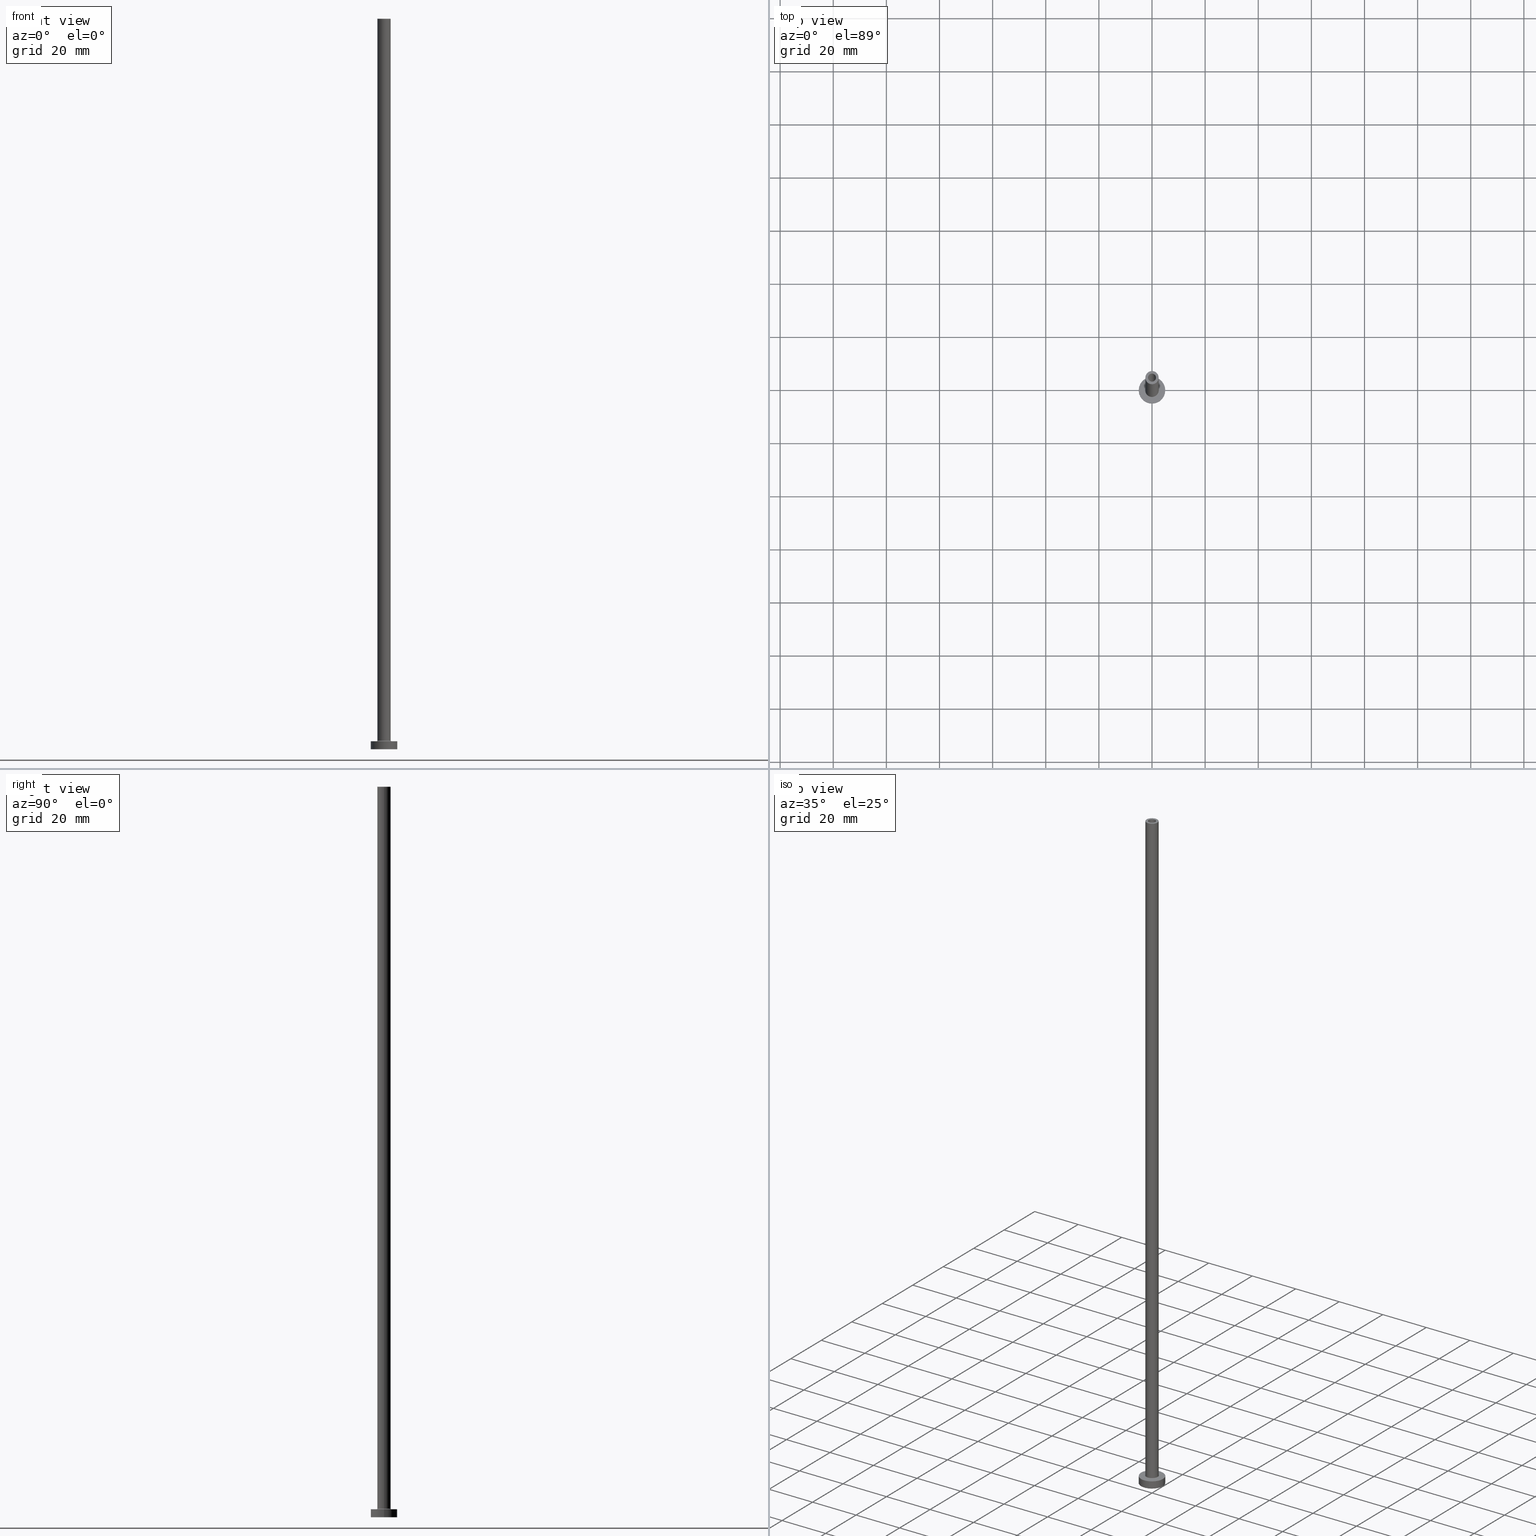
[diagram: canonical four-view strip — front | top / right | iso, engineering-drawing reading convention]
A machine part, canonical four-view strip (front | top / right | iso — engineering-drawing reading convention). The complete STEP part file that produces these views, byte-faithful:
ISO-10303-21;
HEADER;
FILE_DESCRIPTION (( 'STEP AP203' ),
    '1' );
FILE_NAME ('8223.STEP',
    '2023-02-13T17:59:55',
    ( '' ),
    ( '' ),
    'SwSTEP 2.0',
    'SolidWorks 2019',
    '' );
FILE_SCHEMA (( 'CONFIG_CONTROL_DESIGN' ));
ENDSEC;

DATA;
#1 = ADVANCED_FACE ( 'NONE', ( #183 ), #31, .F. ) ;
#2 = CARTESIAN_POINT ( 'NONE',  ( 0.000000000000000000, 0.000000000000000000, 0.000000000000000000 ) ) ;
#3 = DIRECTION ( 'NONE',  ( -1.000000000000000000, 0.000000000000000000, 0.000000000000000000 ) ) ;
#4 = EDGE_CURVE ( 'NONE', #66, #181, #457, .T. ) ;
#5 = CIRCLE ( 'NONE', #277, 5.000000000000000000 ) ;
#6 = CARTESIAN_POINT ( 'NONE',  ( 0.000000000000000000, 0.000000000000000000, 275.0000000000000000 ) ) ;
#7 = COORDINATED_UNIVERSAL_TIME_OFFSET ( 1, 0, .AHEAD. ) ;
#8 = CARTESIAN_POINT ( 'NONE',  ( 0.000000000000000000, 0.000000000000000000, 275.0000000000000000 ) ) ;
#9 = APPROVAL_STATUS ( 'not_yet_approved' ) ;
#10 = CYLINDRICAL_SURFACE ( 'NONE', #33, 1.650000000000000133 ) ;
#11 = APPROVAL_STATUS ( 'not_yet_approved' ) ;
#12 = CARTESIAN_POINT ( 'NONE',  ( 0.000000000000000000, 0.000000000000000000, 0.000000000000000000 ) ) ;
#13 = CIRCLE ( 'NONE', #145, 1.650000000000000133 ) ;
#14 = APPROVAL_PERSON_ORGANIZATION ( #401, #365, #361 ) ;
#15 = ORIENTED_EDGE ( 'NONE', *, *, #426, .F. ) ;
#16 = PERSON_AND_ORGANIZATION ( #72, #359 ) ;
#17 = FACE_OUTER_BOUND ( 'NONE', #106, .T. ) ;
#18 = CARTESIAN_POINT ( 'NONE',  ( 0.000000000000000000, 0.000000000000000000, 3.000000000000000000 ) ) ;
#19 = EDGE_LOOP ( 'NONE', ( #409, #147 ) ) ;
#20 = CARTESIAN_POINT ( 'NONE',  ( 0.000000000000000000, 0.000000000000000000, 230.0000000000000284 ) ) ;
#21 = CC_DESIGN_PERSON_AND_ORGANIZATION_ASSIGNMENT ( #88, #130, ( #210 ) ) ;
#22 = DIRECTION ( 'NONE',  ( -0.000000000000000000, -0.000000000000000000, -1.000000000000000000 ) ) ;
#23 = ORIENTED_EDGE ( 'NONE', *, *, #225, .F. ) ;
#24 = MECHANICAL_CONTEXT ( 'NONE', #367, 'mechanical' ) ;
#25 = ORIENTED_EDGE ( 'NONE', *, *, #202, .T. ) ;
#26 = AXIS2_PLACEMENT_3D ( 'NONE', #354, #122, #120 ) ;
#27 = LINE ( 'NONE', #82, #53 ) ;
#28 = ORIENTED_EDGE ( 'NONE', *, *, #213, .F. ) ;
#29 = DIRECTION ( 'NONE',  ( 1.000000000000000000, 0.000000000000000000, 0.000000000000000000 ) ) ;
#30 = ORIENTED_EDGE ( 'NONE', *, *, #36, .T. ) ;
#31 = TOROIDAL_SURFACE ( 'NONE', #177, 2.799999999999999822, 0.2999999999999999889 ) ;
#32 = VERTEX_POINT ( 'NONE', #455 ) ;
#33 = AXIS2_PLACEMENT_3D ( 'NONE', #232, #298, #42 ) ;
#34 = CARTESIAN_POINT ( 'NONE',  ( 1.500000000000000222, 1.836970198721029934E-16, 230.0000000000000284 ) ) ;
#35 = AXIS2_PLACEMENT_3D ( 'NONE', #243, #175, #239 ) ;
#36 = EDGE_CURVE ( 'NONE', #378, #224, #387, .T. ) ;
#37 = DIRECTION ( 'NONE',  ( 0.000000000000000000, 0.000000000000000000, 1.000000000000000000 ) ) ;
#38 = CARTESIAN_POINT ( 'NONE',  ( 2.799999999999999822, 0.000000000000000000, 3.000000000000012434 ) ) ;
#39 = FACE_OUTER_BOUND ( 'NONE', #315, .T. ) ;
#40 = CC_DESIGN_PERSON_AND_ORGANIZATION_ASSIGNMENT ( #16, #125, ( #382 ) ) ;
#41 = DIRECTION ( 'NONE',  ( 0.000000000000000000, 0.000000000000000000, 1.000000000000000000 ) ) ;
#42 = DIRECTION ( 'NONE',  ( -1.000000000000000000, 0.000000000000000000, 0.000000000000000000 ) ) ;
#43 = AXIS2_PLACEMENT_3D ( 'NONE', #160, #436, #332 ) ;
#44 = PERSON_AND_ORGANIZATION_ROLE ( 'creator' ) ;
#45 = AXIS2_PLACEMENT_3D ( 'NONE', #2, #229, #300 ) ;
#46 = FACE_OUTER_BOUND ( 'NONE', #19, .T. ) ;
#47 = APPROVAL ( #9, 'NEUR�EN�' ) ;
#48 = SHAPE_DEFINITION_REPRESENTATION ( #107, #427 ) ;
#49 = FACE_OUTER_BOUND ( 'NONE', #256, .T. ) ;
#50 = EDGE_CURVE ( 'NONE', #407, #322, #419, .T. ) ;
#51 = COORDINATED_UNIVERSAL_TIME_OFFSET ( 1, 0, .AHEAD. ) ;
#52 = DIRECTION ( 'NONE',  ( 0.000000000000000000, 0.000000000000000000, -1.000000000000000000 ) ) ;
#53 = VECTOR ( 'NONE', #289, 1000.000000000000000 ) ;
#54 = EDGE_CURVE ( 'NONE', #66, #324, #394, .T. ) ;
#55 = ORIENTED_EDGE ( 'NONE', *, *, #69, .F. ) ;
#56 = APPLICATION_CONTEXT ( 'configuration controlled 3d designs of mechanical parts and assemblies' ) ;
#57 = CIRCLE ( 'NONE', #320, 2.500000000000000000 ) ;
#58 = PERSON_AND_ORGANIZATION ( #72, #359 ) ;
#59 = ORIENTED_EDGE ( 'NONE', *, *, #432, .T. ) ;
#60 = CARTESIAN_POINT ( 'NONE',  ( 2.500000000000000000, 3.061616997868383141E-16, 275.0000000000000000 ) ) ;
#61 = ORIENTED_EDGE ( 'NONE', *, *, #225, .T. ) ;
#62 = EDGE_CURVE ( 'NONE', #248, #216, #362, .T. ) ;
#63 = DIRECTION ( 'NONE',  ( 1.000000000000000000, 0.000000000000000000, 0.000000000000000000 ) ) ;
#64 = EDGE_LOOP ( 'NONE', ( #208, #451, #381, #23 ) ) ;
#65 = CARTESIAN_POINT ( 'NONE',  ( 0.000000000000000000, 0.000000000000000000, 3.000000000000000000 ) ) ;
#66 = VERTEX_POINT ( 'NONE', #424 ) ;
#67 = DIRECTION ( 'NONE',  ( 1.000000000000000000, 0.000000000000000000, 0.000000000000000000 ) ) ;
#68 = DIRECTION ( 'NONE',  ( 1.000000000000000000, 0.000000000000000000, 0.000000000000000000 ) ) ;
#69 = EDGE_CURVE ( 'NONE', #446, #322, #425, .T. ) ;
#70 = CIRCLE ( 'NONE', #193, 2.500000000000000000 ) ;
#71 = ORIENTED_EDGE ( 'NONE', *, *, #386, .F. ) ;
#72 = PERSON ( 'NEUR�EN�', 'NEUR�EN�', 'NEUR�EN�', ('NEUR�EN�'), ('NEUR�EN�'), ('NEUR�EN�') ) ;
#73 = ORIENTED_EDGE ( 'NONE', *, *, #432, .F. ) ;
#74 = CARTESIAN_POINT ( 'NONE',  ( -5.000000000000000000, 0.000000000000000000, 0.000000000000000000 ) ) ;
#75 = ADVANCED_FACE ( 'NONE', ( #39 ), #238, .F. ) ;
#76 = AXIS2_PLACEMENT_3D ( 'NONE', #294, #254, #68 ) ;
#77 = DIRECTION ( 'NONE',  ( 1.000000000000000000, 0.000000000000000000, 0.000000000000000000 ) ) ;
#78 = CARTESIAN_POINT ( 'NONE',  ( -1.650000000000000133, 0.000000000000000000, 234.6669047558312400 ) ) ;
#79 = VECTOR ( 'NONE', #187, 1000.000000000000000 ) ;
#80 = CARTESIAN_POINT ( 'NONE',  ( 0.000000000000000000, 0.000000000000000000, 0.000000000000000000 ) ) ;
#81 = EDGE_CURVE ( 'NONE', #224, #32, #299, .T. ) ;
#82 = CARTESIAN_POINT ( 'NONE',  ( 1.650000000000000133, 2.020667218593133001E-16, 234.6669047558312400 ) ) ;
#83 = DIRECTION ( 'NONE',  ( -1.000000000000000000, 0.000000000000000000, 0.000000000000000000 ) ) ;
#84 = CARTESIAN_POINT ( 'NONE',  ( 0.000000000000000000, 0.000000000000000000, 3.000000000000000000 ) ) ;
#85 = VECTOR ( 'NONE', #385, 1000.000000000000000 ) ;
#86 = DATE_AND_TIME ( #166, #126 ) ;
#87 = CARTESIAN_POINT ( 'NONE',  ( 1.650000000000000133, 2.020667218593133001E-16, 230.0000000000000284 ) ) ;
#88 = PERSON_AND_ORGANIZATION ( #72, #359 ) ;
#89 = ADVANCED_FACE ( 'NONE', ( #260, #46 ), #228, .T. ) ;
#90 = CYLINDRICAL_SURFACE ( 'NONE', #233, 1.650000000000000133 ) ;
#91 = DESIGN_CONTEXT ( 'detailed design', #56, 'design' ) ;
#92 = EDGE_CURVE ( 'NONE', #181, #66, #275, .T. ) ;
#93 = DIRECTION ( 'NONE',  ( 0.000000000000000000, 0.000000000000000000, 1.000000000000000000 ) ) ;
#94 = AXIS2_PLACEMENT_3D ( 'NONE', #8, #392, #304 ) ;
#95 = DIRECTION ( 'NONE',  ( 1.000000000000000000, 0.000000000000000000, 0.000000000000000000 ) ) ;
#96 = EDGE_CURVE ( 'NONE', #112, #407, #310, .T. ) ;
#97 = CARTESIAN_POINT ( 'NONE',  ( -1.650000000000000133, 0.000000000000000000, 230.0000000000000284 ) ) ;
#98 = ORIENTED_EDGE ( 'NONE', *, *, #69, .T. ) ;
#99 = CARTESIAN_POINT ( 'NONE',  ( -1.500000000000000222, 0.000000000000000000, 230.0000000000000284 ) ) ;
#100 = ORIENTED_EDGE ( 'NONE', *, *, #4, .T. ) ;
#101 = FACE_OUTER_BOUND ( 'NONE', #253, .T. ) ;
#102 = ORIENTED_EDGE ( 'NONE', *, *, #128, .F. ) ;
#103 = ADVANCED_FACE ( 'NONE', ( #429 ), #10, .F. ) ;
#104 = CARTESIAN_POINT ( 'NONE',  ( 5.000000000000000000, 6.123233995736766282E-16, 0.000000000000000000 ) ) ;
#105 = ORIENTED_EDGE ( 'NONE', *, *, #441, .F. ) ;
#106 = EDGE_LOOP ( 'NONE', ( #15, #138 ) ) ;
#107 = PRODUCT_DEFINITION_SHAPE ( 'NONE', 'NONE',  #410 ) ;
#108 = CARTESIAN_POINT ( 'NONE',  ( 5.000000000000000000, 6.123233995736766282E-16, 3.000000000000000000 ) ) ;
#109 = ORIENTED_EDGE ( 'NONE', *, *, #202, .F. ) ;
#110 = ADVANCED_FACE ( 'NONE', ( #326 ), #355, .T. ) ;
#111 = DIRECTION ( 'NONE',  ( -0.000000000000000000, -0.000000000000000000, -1.000000000000000000 ) ) ;
#112 = VERTEX_POINT ( 'NONE', #389 ) ;
#113 = DIRECTION ( 'NONE',  ( -1.000000000000000000, 0.000000000000000000, 0.000000000000000000 ) ) ;
#114 = ADVANCED_FACE ( 'NONE', ( #263 ), #230, .F. ) ;
#115 = CARTESIAN_POINT ( 'NONE',  ( 0.000000000000000000, 0.000000000000000000, 230.0000000000000284 ) ) ;
#116 = AXIS2_PLACEMENT_3D ( 'NONE', #445, #308, #447 ) ;
#117 = APPLICATION_PROTOCOL_DEFINITION ( 'international standard', 'config_control_design', 1994, #367 ) ;
#118 = ADVANCED_FACE ( 'NONE', ( #303, #195 ), #265, .T. ) ;
#119 = CIRCLE ( 'NONE', #184, 0.2999999999999999334 ) ;
#120 = DIRECTION ( 'NONE',  ( 1.000000000000000000, 0.000000000000000000, 0.000000000000000000 ) ) ;
#121 = PERSON_AND_ORGANIZATION ( #72, #359 ) ;
#122 = DIRECTION ( 'NONE',  ( 0.000000000000000000, 0.000000000000000000, 1.000000000000000000 ) ) ;
#123 = DATE_AND_TIME ( #271, #261 ) ;
#124 = LINE ( 'NONE', #267, #79 ) ;
#125 = PERSON_AND_ORGANIZATION_ROLE ( 'design_owner' ) ;
#126 = LOCAL_TIME ( 18, 59, 55.00000000000000000, #7 ) ;
#127 = CARTESIAN_POINT ( 'NONE',  ( 0.000000000000000000, 0.000000000000000000, 3.000000000000000000 ) ) ;
#128 = EDGE_CURVE ( 'NONE', #112, #446, #124, .T. ) ;
#129 = FACE_BOUND ( 'NONE', #319, .T. ) ;
#130 = PERSON_AND_ORGANIZATION_ROLE ( 'classification_officer' ) ;
#131 = DIRECTION ( 'NONE',  ( -0.000000000000000000, -0.000000000000000000, -1.000000000000000000 ) ) ;
#132 = ORIENTED_EDGE ( 'NONE', *, *, #4, .F. ) ;
#133 = EDGE_CURVE ( 'NONE', #136, #165, #13, .T. ) ;
#134 = FACE_BOUND ( 'NONE', #440, .T. ) ;
#135 = AXIS2_PLACEMENT_3D ( 'NONE', #379, #423, #327 ) ;
#136 = VERTEX_POINT ( 'NONE', #87 ) ;
#137 = CARTESIAN_POINT ( 'NONE',  ( 0.000000000000000000, 0.000000000000000000, 275.0000000000000000 ) ) ;
#138 = ORIENTED_EDGE ( 'NONE', *, *, #133, .F. ) ;
#139 = ORIENTED_EDGE ( 'NONE', *, *, #426, .T. ) ;
#140 = EDGE_CURVE ( 'NONE', #248, #378, #57, .T. ) ;
#141 =( LENGTH_UNIT ( ) NAMED_UNIT ( * ) SI_UNIT ( .MILLI., .METRE. ) );
#142 = MANIFOLD_SOLID_BREP ( 'Odebrat vysunut�m4', #251 ) ;
#143 = ORIENTED_EDGE ( 'NONE', *, *, #81, .T. ) ;
#144 = CIRCLE ( 'NONE', #135, 1.500000000000000222 ) ;
#145 = AXIS2_PLACEMENT_3D ( 'NONE', #115, #37, #77 ) ;
#146 = CARTESIAN_POINT ( 'NONE',  ( 0.000000000000000000, 0.000000000000000000, 230.0000000000000284 ) ) ;
#147 = ORIENTED_EDGE ( 'NONE', *, *, #140, .T. ) ;
#148 = ORIENTED_EDGE ( 'NONE', *, *, #386, .T. ) ;
#149 = EDGE_CURVE ( 'NONE', #216, #343, #119, .T. ) ;
#150 = VERTEX_POINT ( 'NONE', #99 ) ;
#151 = APPROVAL_PERSON_ORGANIZATION ( #161, #47, #397 ) ;
#152 = ORIENTED_EDGE ( 'NONE', *, *, #249, .T. ) ;
#153 = CARTESIAN_POINT ( 'NONE',  ( -1.500000000000000222, 0.000000000000000000, 275.0000000000000000 ) ) ;
#154 = DIRECTION ( 'NONE',  ( 0.000000000000000000, -1.000000000000000000, 0.000000000000000000 ) ) ;
#155 = CARTESIAN_POINT ( 'NONE',  ( 1.500000000000000222, 1.836970198721029934E-16, 275.0000000000000000 ) ) ;
#156 = CIRCLE ( 'NONE', #307, 1.650000000000000133 ) ;
#157 = COORDINATED_UNIVERSAL_TIME_OFFSET ( 1, 0, .AHEAD. ) ;
#158 = DIRECTION ( 'NONE',  ( 0.000000000000000000, 0.000000000000000000, -1.000000000000000000 ) ) ;
#159 = APPROVAL_DATE_TIME ( #302, #365 ) ;
#160 = CARTESIAN_POINT ( 'NONE',  ( 0.000000000000000000, 0.000000000000000000, 275.0000000000000000 ) ) ;
#161 = PERSON_AND_ORGANIZATION ( #72, #359 ) ;
#162 = CARTESIAN_POINT ( 'NONE',  ( -2.799999999999999822, 3.429011037612588783E-16, 3.300000000000025135 ) ) ;
#163 = CIRCLE ( 'NONE', #219, 1.500000000000000222 ) ;
#164 = DIRECTION ( 'NONE',  ( -0.000000000000000000, -0.000000000000000000, -1.000000000000000000 ) ) ;
#165 = VERTEX_POINT ( 'NONE', #97 ) ;
#166 = CALENDAR_DATE ( 2023, 13, 2 ) ;
#167 = DIRECTION ( 'NONE',  ( 1.000000000000000000, 0.000000000000000000, -0.000000000000000000 ) ) ;
#168 = ORIENTED_EDGE ( 'NONE', *, *, #221, .T. ) ;
#169 = CARTESIAN_POINT ( 'NONE',  ( -1.650000000000000133, 0.000000000000000000, 0.000000000000000000 ) ) ;
#170 = ORIENTED_EDGE ( 'NONE', *, *, #281, .T. ) ;
#171 = CC_DESIGN_PERSON_AND_ORGANIZATION_ASSIGNMENT ( #370, #194, ( #452 ) ) ;
#172 = DIRECTION ( 'NONE',  ( 0.000000000000000000, 0.000000000000000000, 1.000000000000000000 ) ) ;
#173 = APPROVAL_PERSON_ORGANIZATION ( #357, #206, #231 ) ;
#174 = ORIENTED_EDGE ( 'NONE', *, *, #380, .T. ) ;
#175 = DIRECTION ( 'NONE',  ( 0.000000000000000000, 0.000000000000000000, -1.000000000000000000 ) ) ;
#176 = ORIENTED_EDGE ( 'NONE', *, *, #360, .T. ) ;
#177 = AXIS2_PLACEMENT_3D ( 'NONE', #220, #348, #29 ) ;
#178 = DIRECTION ( 'NONE',  ( -0.000000000000000000, -0.000000000000000000, -1.000000000000000000 ) ) ;
#179 = VERTEX_POINT ( 'NONE', #169 ) ;
#180 = CARTESIAN_POINT ( 'NONE',  ( -2.500000000000000000, 0.000000000000000000, 275.0000000000000000 ) ) ;
#181 = VERTEX_POINT ( 'NONE', #408 ) ;
#182 = VECTOR ( 'NONE', #321, 1000.000000000000000 ) ;
#183 = FACE_OUTER_BOUND ( 'NONE', #64, .T. ) ;
#184 = AXIS2_PLACEMENT_3D ( 'NONE', #461, #154, #52 ) ;
#185 = AXIS2_PLACEMENT_3D ( 'NONE', #363, #22, #366 ) ;
#186 = ADVANCED_FACE ( 'NONE', ( #49 ), #402, .F. ) ;
#187 = DIRECTION ( 'NONE',  ( -0.000000000000000000, -0.000000000000000000, -1.000000000000000000 ) ) ;
#188 = EDGE_CURVE ( 'NONE', #179, #417, #285, .T. ) ;
#189 =( NAMED_UNIT ( * ) SI_UNIT ( $, .STERADIAN. ) SOLID_ANGLE_UNIT ( ) );
#190 = DIRECTION ( 'NONE',  ( 1.000000000000000000, 0.000000000000000000, 0.000000000000000000 ) ) ;
#191 = CARTESIAN_POINT ( 'NONE',  ( -2.500000000000000000, 0.000000000000000000, 275.0000000000000000 ) ) ;
#192 = DIRECTION ( 'NONE',  ( 1.000000000000000000, 0.000000000000000000, 0.000000000000000000 ) ) ;
#193 = AXIS2_PLACEMENT_3D ( 'NONE', #137, #41, #67 ) ;
#194 = PERSON_AND_ORGANIZATION_ROLE ( 'design_supplier' ) ;
#195 = FACE_OUTER_BOUND ( 'NONE', #250, .T. ) ;
#196 = DIRECTION ( 'NONE',  ( 1.224646799147353207E-16, 1.000000000000000000, -0.000000000000000000 ) ) ;
#197 = CARTESIAN_POINT ( 'NONE',  ( 2.500000000000000000, 3.061616997868383141E-16, 3.300000000000025135 ) ) ;
#198 = APPROVAL_STATUS ( 'not_yet_approved' ) ;
#199 = CC_DESIGN_APPROVAL ( #365, ( #210 ) ) ;
#200 = AXIS2_PLACEMENT_3D ( 'NONE', #212, #215, #286 ) ;
#201 = CARTESIAN_POINT ( 'NONE',  ( -2.500000000000000000, 0.000000000000000000, 3.300000000000025135 ) ) ;
#202 = EDGE_CURVE ( 'NONE', #343, #32, #459, .T. ) ;
#203 = ORIENTED_EDGE ( 'NONE', *, *, #281, .F. ) ;
#204 = SECURITY_CLASSIFICATION_LEVEL ( 'unclassified' ) ;
#205 = CARTESIAN_POINT ( 'NONE',  ( 0.000000000000000000, 0.000000000000000000, 234.6669047558312400 ) ) ;
#206 = APPROVAL ( #198, 'NEUR�EN�' ) ;
#207 = CARTESIAN_POINT ( 'NONE',  ( 0.000000000000000000, 0.000000000000000000, 0.000000000000000000 ) ) ;
#208 = ORIENTED_EDGE ( 'NONE', *, *, #81, .F. ) ;
#209 = DIRECTION ( 'NONE',  ( 0.000000000000000000, 0.000000000000000000, 1.000000000000000000 ) ) ;
#210 = SECURITY_CLASSIFICATION ( '', '', #204 ) ;
#211 = ORIENTED_EDGE ( 'NONE', *, *, #188, .F. ) ;
#212 = CARTESIAN_POINT ( 'NONE',  ( 0.000000000000000000, 0.000000000000000000, 3.300000000000025135 ) ) ;
#213 = EDGE_CURVE ( 'NONE', #407, #112, #5, .T. ) ;
#214 = EDGE_LOOP ( 'NONE', ( #383, #448, #176, #309 ) ) ;
#215 = DIRECTION ( 'NONE',  ( 0.000000000000000000, 0.000000000000000000, 1.000000000000000000 ) ) ;
#216 = VERTEX_POINT ( 'NONE', #197 ) ;
#217 = VECTOR ( 'NONE', #398, 1000.000000000000000 ) ;
#218 = EDGE_CURVE ( 'NONE', #224, #216, #391, .T. ) ;
#219 = AXIS2_PLACEMENT_3D ( 'NONE', #20, #209, #438 ) ;
#220 = CARTESIAN_POINT ( 'NONE',  ( 0.000000000000000000, 0.000000000000000000, 3.300000000000025135 ) ) ;
#221 = EDGE_CURVE ( 'NONE', #417, #179, #156, .T. ) ;
#222 = ORIENTED_EDGE ( 'NONE', *, *, #50, .T. ) ;
#223 = CC_DESIGN_DATE_AND_TIME_ASSIGNMENT ( #273, #430, ( #410 ) ) ;
#224 = VERTEX_POINT ( 'NONE', #201 ) ;
#225 = EDGE_CURVE ( 'NONE', #32, #343, #240, .T. ) ;
#226 = CARTESIAN_POINT ( 'NONE',  ( 0.000000000000000000, 0.000000000000000000, 275.0000000000000000 ) ) ;
#227 = CC_DESIGN_SECURITY_CLASSIFICATION ( #210, ( #452 ) ) ;
#228 = PLANE ( 'NONE',  #94 ) ;
#229 = DIRECTION ( 'NONE',  ( 0.000000000000000000, 0.000000000000000000, 1.000000000000000000 ) ) ;
#230 = CYLINDRICAL_SURFACE ( 'NONE', #335, 1.500000000000000222 ) ;
#231 = APPROVAL_ROLE ( '' ) ;
#232 = CARTESIAN_POINT ( 'NONE',  ( 0.000000000000000000, 0.000000000000000000, 234.6669047558312400 ) ) ;
#233 = AXIS2_PLACEMENT_3D ( 'NONE', #205, #337, #442 ) ;
#234 = CALENDAR_DATE ( 2023, 13, 2 ) ;
#235 = CARTESIAN_POINT ( 'NONE',  ( 0.000000000000000000, 0.000000000000000000, 275.0000000000000000 ) ) ;
#236 = DIRECTION ( 'NONE',  ( 1.000000000000000000, 0.000000000000000000, 0.000000000000000000 ) ) ;
#237 = CALENDAR_DATE ( 2023, 13, 2 ) ;
#238 = TOROIDAL_SURFACE ( 'NONE', #26, 2.799999999999999822, 0.2999999999999999889 ) ;
#239 = DIRECTION ( 'NONE',  ( -1.000000000000000000, 0.000000000000000000, 0.000000000000000000 ) ) ;
#240 = CIRCLE ( 'NONE', #268, 2.799999999999999822 ) ;
#241 = DIRECTION ( 'NONE',  ( -0.000000000000000000, -0.000000000000000000, -1.000000000000000000 ) ) ;
#242 = ORIENTED_EDGE ( 'NONE', *, *, #54, .T. ) ;
#243 = CARTESIAN_POINT ( 'NONE',  ( 0.000000000000000000, 0.000000000000000000, 275.0000000000000000 ) ) ;
#244 = AXIS2_PLACEMENT_3D ( 'NONE', #162, #196, #428 ) ;
#245 = LINE ( 'NONE', #78, #453 ) ;
#246 = AXIS2_PLACEMENT_3D ( 'NONE', #146, #415, #258 ) ;
#247 = FACE_OUTER_BOUND ( 'NONE', #214, .T. ) ;
#248 = VERTEX_POINT ( 'NONE', #60 ) ;
#249 = EDGE_CURVE ( 'NONE', #324, #150, #163, .T. ) ;
#250 = EDGE_LOOP ( 'NONE', ( #312, #458 ) ) ;
#251 = CLOSED_SHELL ( 'NONE', ( #114, #103, #75, #418, #349, #274, #118, #295, #110, #89, #1, #292, #257, #186 ) ) ;
#252 =( GEOMETRIC_REPRESENTATION_CONTEXT ( 3 ) GLOBAL_UNCERTAINTY_ASSIGNED_CONTEXT ( ( #364 ) ) GLOBAL_UNIT_ASSIGNED_CONTEXT ( ( #141, #388, #189 ) ) REPRESENTATION_CONTEXT ( 'NONE', 'WORKASPACE' ) );
#253 = EDGE_LOOP ( 'NONE', ( #28, #222, #170, #102 ) ) ;
#254 = DIRECTION ( 'NONE',  ( 0.000000000000000000, 0.000000000000000000, 1.000000000000000000 ) ) ;
#255 = CARTESIAN_POINT ( 'NONE',  ( 5.000000000000000000, 6.123233995736766282E-16, 3.000000000000000000 ) ) ;
#256 = EDGE_LOOP ( 'NONE', ( #279, #100, #59, #454 ) ) ;
#257 = ADVANCED_FACE ( 'NONE', ( #129, #17 ), #272, .F. ) ;
#258 = DIRECTION ( 'NONE',  ( 1.000000000000000000, 0.000000000000000000, 0.000000000000000000 ) ) ;
#259 = VECTOR ( 'NONE', #306, 1000.000000000000000 ) ;
#260 = FACE_BOUND ( 'NONE', #346, .T. ) ;
#261 = LOCAL_TIME ( 18, 59, 55.00000000000000000, #264 ) ;
#262 = DIRECTION ( 'NONE',  ( 0.000000000000000000, 0.000000000000000000, -1.000000000000000000 ) ) ;
#263 = FACE_OUTER_BOUND ( 'NONE', #290, .T. ) ;
#264 = COORDINATED_UNIVERSAL_TIME_OFFSET ( 1, 0, .AHEAD. ) ;
#265 = PLANE ( 'NONE',  #413 ) ;
#266 = APPROVAL_DATE_TIME ( #123, #206 ) ;
#267 = CARTESIAN_POINT ( 'NONE',  ( -5.000000000000000000, 0.000000000000000000, 3.000000000000000000 ) ) ;
#268 = AXIS2_PLACEMENT_3D ( 'NONE', #18, #164, #336 ) ;
#269 = PERSON_AND_ORGANIZATION_ROLE ( 'creator' ) ;
#270 = DIRECTION ( 'NONE',  ( 0.000000000000000000, 0.000000000000000000, 1.000000000000000000 ) ) ;
#271 = CALENDAR_DATE ( 2023, 13, 2 ) ;
#272 = PLANE ( 'NONE',  #437 ) ;
#273 = DATE_AND_TIME ( #234, #420 ) ;
#274 = ADVANCED_FACE ( 'NONE', ( #280 ), #400, .T. ) ;
#275 = CIRCLE ( 'NONE', #43, 1.500000000000000222 ) ;
#276 = CARTESIAN_POINT ( 'NONE',  ( 0.000000000000000000, 0.000000000000000000, 0.000000000000000000 ) ) ;
#277 = AXIS2_PLACEMENT_3D ( 'NONE', #373, #270, #316 ) ;
#278 = FACE_OUTER_BOUND ( 'NONE', #412, .T. ) ;
#279 = ORIENTED_EDGE ( 'NONE', *, *, #54, .F. ) ;
#280 = FACE_OUTER_BOUND ( 'NONE', #344, .T. ) ;
#281 = EDGE_CURVE ( 'NONE', #322, #446, #341, .T. ) ;
#282 = EDGE_LOOP ( 'NONE', ( #25, #61 ) ) ;
#283 = CYLINDRICAL_SURFACE ( 'NONE', #329, 5.000000000000000000 ) ;
#284 = ORIENTED_EDGE ( 'NONE', *, *, #50, .F. ) ;
#285 = CIRCLE ( 'NONE', #313, 1.650000000000000133 ) ;
#286 = DIRECTION ( 'NONE',  ( 1.000000000000000000, 0.000000000000000000, 0.000000000000000000 ) ) ;
#287 = EDGE_LOOP ( 'NONE', ( #139, #174, #168, #105 ) ) ;
#288 = AXIS2_PLACEMENT_3D ( 'NONE', #235, #396, #83 ) ;
#289 = DIRECTION ( 'NONE',  ( 0.000000000000000000, 0.000000000000000000, -1.000000000000000000 ) ) ;
#290 = EDGE_LOOP ( 'NONE', ( #372, #242, #71, #73 ) ) ;
#291 = ORIENTED_EDGE ( 'NONE', *, *, #221, .F. ) ;
#292 = ADVANCED_FACE ( 'NONE', ( #371 ), #90, .F. ) ;
#293 = CIRCLE ( 'NONE', #200, 2.500000000000000000 ) ;
#294 = CARTESIAN_POINT ( 'NONE',  ( 0.000000000000000000, 0.000000000000000000, 275.0000000000000000 ) ) ;
#295 = ADVANCED_FACE ( 'NONE', ( #134, #278 ), #406, .F. ) ;
#296 = EDGE_LOOP ( 'NONE', ( #368, #340, #317, #351 ) ) ;
#297 = EDGE_CURVE ( 'NONE', #378, #248, #70, .T. ) ;
#298 = DIRECTION ( 'NONE',  ( 0.000000000000000000, 0.000000000000000000, -1.000000000000000000 ) ) ;
#299 = CIRCLE ( 'NONE', #244, 0.2999999999999999334 ) ;
#300 = DIRECTION ( 'NONE',  ( 1.000000000000000000, 0.000000000000000000, 0.000000000000000000 ) ) ;
#301 = DIRECTION ( 'NONE',  ( 0.000000000000000000, 0.000000000000000000, 1.000000000000000000 ) ) ;
#302 = DATE_AND_TIME ( #403, #377 ) ;
#303 = FACE_BOUND ( 'NONE', #282, .T. ) ;
#304 = DIRECTION ( 'NONE',  ( 1.000000000000000000, 0.000000000000000000, -0.000000000000000000 ) ) ;
#305 = DATE_AND_TIME ( #237, #405 ) ;
#306 = DIRECTION ( 'NONE',  ( -0.000000000000000000, -0.000000000000000000, -1.000000000000000000 ) ) ;
#307 = AXIS2_PLACEMENT_3D ( 'NONE', #376, #339, #63 ) ;
#308 = DIRECTION ( 'NONE',  ( 0.000000000000000000, 0.000000000000000000, 1.000000000000000000 ) ) ;
#309 = ORIENTED_EDGE ( 'NONE', *, *, #36, .F. ) ;
#310 = CIRCLE ( 'NONE', #356, 5.000000000000000000 ) ;
#311 = DIRECTION ( 'NONE',  ( -1.000000000000000000, 0.000000000000000000, 0.000000000000000000 ) ) ;
#312 = ORIENTED_EDGE ( 'NONE', *, *, #96, .T. ) ;
#313 = AXIS2_PLACEMENT_3D ( 'NONE', #12, #241, #236 ) ;
#314 = DIRECTION ( 'NONE',  ( 1.000000000000000000, 0.000000000000000000, -0.000000000000000000 ) ) ;
#315 = EDGE_LOOP ( 'NONE', ( #350, #143, #109, #421 ) ) ;
#316 = DIRECTION ( 'NONE',  ( 1.000000000000000000, 0.000000000000000000, 0.000000000000000000 ) ) ;
#317 = ORIENTED_EDGE ( 'NONE', *, *, #441, .T. ) ;
#318 = DIRECTION ( 'NONE',  ( 0.000000000000000000, 0.000000000000000000, -1.000000000000000000 ) ) ;
#319 = EDGE_LOOP ( 'NONE', ( #148, #152 ) ) ;
#320 = AXIS2_PLACEMENT_3D ( 'NONE', #226, #325, #353 ) ;
#321 = DIRECTION ( 'NONE',  ( -0.000000000000000000, -0.000000000000000000, -1.000000000000000000 ) ) ;
#322 = VERTEX_POINT ( 'NONE', #104 ) ;
#323 = CC_DESIGN_APPROVAL ( #206, ( #410 ) ) ;
#324 = VERTEX_POINT ( 'NONE', #34 ) ;
#325 = DIRECTION ( 'NONE',  ( 0.000000000000000000, 0.000000000000000000, 1.000000000000000000 ) ) ;
#326 = FACE_OUTER_BOUND ( 'NONE', #338, .T. ) ;
#327 = DIRECTION ( 'NONE',  ( 1.000000000000000000, 0.000000000000000000, 0.000000000000000000 ) ) ;
#328 = CARTESIAN_POINT ( 'NONE',  ( 2.500000000000000000, 3.061616997868383141E-16, 275.0000000000000000 ) ) ;
#329 = AXIS2_PLACEMENT_3D ( 'NONE', #65, #111, #393 ) ;
#330 = DATE_TIME_ROLE ( 'classification_date' ) ;
#331 = DIRECTION ( 'NONE',  ( 0.000000000000000000, 0.000000000000000000, 1.000000000000000000 ) ) ;
#332 = DIRECTION ( 'NONE',  ( 1.000000000000000000, 0.000000000000000000, 0.000000000000000000 ) ) ;
#333 = ORIENTED_EDGE ( 'NONE', *, *, #92, .F. ) ;
#334 = APPLICATION_PROTOCOL_DEFINITION ( 'international standard', 'config_control_design', 1994, #56 ) ;
#335 = AXIS2_PLACEMENT_3D ( 'NONE', #6, #158, #3 ) ;
#336 = DIRECTION ( 'NONE',  ( 1.000000000000000000, 0.000000000000000000, 0.000000000000000000 ) ) ;
#337 = DIRECTION ( 'NONE',  ( 0.000000000000000000, 0.000000000000000000, -1.000000000000000000 ) ) ;
#338 = EDGE_LOOP ( 'NONE', ( #374, #443, #30, #460 ) ) ;
#339 = DIRECTION ( 'NONE',  ( -0.000000000000000000, -0.000000000000000000, -1.000000000000000000 ) ) ;
#340 = ORIENTED_EDGE ( 'NONE', *, *, #133, .T. ) ;
#341 = CIRCLE ( 'NONE', #352, 5.000000000000000000 ) ;
#342 = CARTESIAN_POINT ( 'NONE',  ( 0.000000000000000000, 0.000000000000000000, 230.0000000000000284 ) ) ;
#343 = VERTEX_POINT ( 'NONE', #38 ) ;
#344 = EDGE_LOOP ( 'NONE', ( #284, #416, #422, #98 ) ) ;
#345 = CYLINDRICAL_SURFACE ( 'NONE', #369, 2.500000000000000000 ) ;
#346 = EDGE_LOOP ( 'NONE', ( #333, #132 ) ) ;
#347 = CIRCLE ( 'NONE', #246, 1.650000000000000133 ) ;
#348 = DIRECTION ( 'NONE',  ( 0.000000000000000000, 0.000000000000000000, 1.000000000000000000 ) ) ;
#349 = ADVANCED_FACE ( 'NONE', ( #101 ), #283, .T. ) ;
#350 = ORIENTED_EDGE ( 'NONE', *, *, #218, .F. ) ;
#351 = ORIENTED_EDGE ( 'NONE', *, *, #188, .T. ) ;
#352 = AXIS2_PLACEMENT_3D ( 'NONE', #276, #404, #95 ) ;
#353 = DIRECTION ( 'NONE',  ( 1.000000000000000000, 0.000000000000000000, 0.000000000000000000 ) ) ;
#354 = CARTESIAN_POINT ( 'NONE',  ( 0.000000000000000000, 0.000000000000000000, 3.300000000000025135 ) ) ;
#355 = CYLINDRICAL_SURFACE ( 'NONE', #288, 2.500000000000000000 ) ;
#356 = AXIS2_PLACEMENT_3D ( 'NONE', #127, #301, #190 ) ;
#357 = PERSON_AND_ORGANIZATION ( #72, #359 ) ;
#358 = DIRECTION ( 'NONE',  ( 0.000000000000000000, 0.000000000000000000, 1.000000000000000000 ) ) ;
#359 = ORGANIZATION ( 'NEUR�EN�', 'NEUR�EN�', '' ) ;
#360 = EDGE_CURVE ( 'NONE', #216, #224, #293, .T. ) ;
#361 = APPROVAL_ROLE ( '' ) ;
#362 = LINE ( 'NONE', #328, #259 ) ;
#363 = CARTESIAN_POINT ( 'NONE',  ( 0.000000000000000000, 0.000000000000000000, 3.000000000000000000 ) ) ;
#364 = UNCERTAINTY_MEASURE_WITH_UNIT (LENGTH_MEASURE( 1.000000000000000082E-05 ), #141, 'distance_accuracy_value', 'NONE');
#365 = APPROVAL ( #11, 'NEUR�EN�' ) ;
#366 = DIRECTION ( 'NONE',  ( 1.000000000000000000, 0.000000000000000000, 0.000000000000000000 ) ) ;
#367 = APPLICATION_CONTEXT ( 'configuration controlled 3d designs of mechanical parts and assemblies' ) ;
#368 = ORIENTED_EDGE ( 'NONE', *, *, #380, .F. ) ;
#369 = AXIS2_PLACEMENT_3D ( 'NONE', #411, #178, #113 ) ;
#370 = PERSON_AND_ORGANIZATION ( #72, #359 ) ;
#371 = FACE_OUTER_BOUND ( 'NONE', #296, .T. ) ;
#372 = ORIENTED_EDGE ( 'NONE', *, *, #92, .T. ) ;
#373 = CARTESIAN_POINT ( 'NONE',  ( 0.000000000000000000, 0.000000000000000000, 3.000000000000000000 ) ) ;
#374 = ORIENTED_EDGE ( 'NONE', *, *, #62, .F. ) ;
#375 = CC_DESIGN_PERSON_AND_ORGANIZATION_ASSIGNMENT ( #58, #44, ( #410 ) ) ;
#376 = CARTESIAN_POINT ( 'NONE',  ( 0.000000000000000000, 0.000000000000000000, 0.000000000000000000 ) ) ;
#377 = LOCAL_TIME ( 18, 59, 55.00000000000000000, #157 ) ;
#378 = VERTEX_POINT ( 'NONE', #191 ) ;
#379 = CARTESIAN_POINT ( 'NONE',  ( 0.000000000000000000, 0.000000000000000000, 230.0000000000000284 ) ) ;
#380 = EDGE_CURVE ( 'NONE', #136, #417, #27, .T. ) ;
#381 = ORIENTED_EDGE ( 'NONE', *, *, #149, .T. ) ;
#382 = PRODUCT ( '8223', '8223', '', ( #24 ) ) ;
#383 = ORIENTED_EDGE ( 'NONE', *, *, #140, .F. ) ;
#384 = AXIS2_PLACEMENT_3D ( 'NONE', #439, #131, #311 ) ;
#385 = DIRECTION ( 'NONE',  ( -0.000000000000000000, -0.000000000000000000, -1.000000000000000000 ) ) ;
#386 = EDGE_CURVE ( 'NONE', #150, #324, #144, .T. ) ;
#387 = LINE ( 'NONE', #180, #182 ) ;
#388 =( NAMED_UNIT ( * ) PLANE_ANGLE_UNIT ( ) SI_UNIT ( $, .RADIAN. ) );
#389 = CARTESIAN_POINT ( 'NONE',  ( -5.000000000000000000, 0.000000000000000000, 3.000000000000000000 ) ) ;
#390 = LINE ( 'NONE', #153, #444 ) ;
#391 = CIRCLE ( 'NONE', #116, 2.500000000000000000 ) ;
#392 = DIRECTION ( 'NONE',  ( 0.000000000000000000, 0.000000000000000000, 1.000000000000000000 ) ) ;
#393 = DIRECTION ( 'NONE',  ( -1.000000000000000000, 0.000000000000000000, 0.000000000000000000 ) ) ;
#394 = LINE ( 'NONE', #155, #217 ) ;
#395 = COORDINATED_UNIVERSAL_TIME_OFFSET ( 1, 0, .AHEAD. ) ;
#396 = DIRECTION ( 'NONE',  ( -0.000000000000000000, -0.000000000000000000, -1.000000000000000000 ) ) ;
#397 = APPROVAL_ROLE ( '' ) ;
#398 = DIRECTION ( 'NONE',  ( 0.000000000000000000, 0.000000000000000000, -1.000000000000000000 ) ) ;
#399 = CC_DESIGN_APPROVAL ( #47, ( #452 ) ) ;
#400 = CYLINDRICAL_SURFACE ( 'NONE', #384, 5.000000000000000000 ) ;
#401 = PERSON_AND_ORGANIZATION ( #72, #359 ) ;
#402 = CYLINDRICAL_SURFACE ( 'NONE', #35, 1.500000000000000222 ) ;
#403 = CALENDAR_DATE ( 2023, 13, 2 ) ;
#404 = DIRECTION ( 'NONE',  ( 0.000000000000000000, 0.000000000000000000, 1.000000000000000000 ) ) ;
#405 = LOCAL_TIME ( 18, 59, 55.00000000000000000, #395 ) ;
#406 = PLANE ( 'NONE',  #414 ) ;
#407 = VERTEX_POINT ( 'NONE', #255 ) ;
#408 = CARTESIAN_POINT ( 'NONE',  ( -1.500000000000000222, 0.000000000000000000, 275.0000000000000000 ) ) ;
#409 = ORIENTED_EDGE ( 'NONE', *, *, #297, .T. ) ;
#410 = PRODUCT_DEFINITION ( 'NEZN�M�', '', #452, #91 ) ;
#411 = CARTESIAN_POINT ( 'NONE',  ( 0.000000000000000000, 0.000000000000000000, 275.0000000000000000 ) ) ;
#412 = EDGE_LOOP ( 'NONE', ( #55, #203 ) ) ;
#413 = AXIS2_PLACEMENT_3D ( 'NONE', #84, #331, #433 ) ;
#414 = AXIS2_PLACEMENT_3D ( 'NONE', #207, #172, #314 ) ;
#415 = DIRECTION ( 'NONE',  ( 0.000000000000000000, 0.000000000000000000, 1.000000000000000000 ) ) ;
#416 = ORIENTED_EDGE ( 'NONE', *, *, #96, .F. ) ;
#417 = VERTEX_POINT ( 'NONE', #449 ) ;
#418 = ADVANCED_FACE ( 'NONE', ( #247 ), #345, .T. ) ;
#419 = LINE ( 'NONE', #108, #85 ) ;
#420 = LOCAL_TIME ( 18, 59, 55.00000000000000000, #51 ) ;
#421 = ORIENTED_EDGE ( 'NONE', *, *, #149, .F. ) ;
#422 = ORIENTED_EDGE ( 'NONE', *, *, #128, .T. ) ;
#423 = DIRECTION ( 'NONE',  ( 0.000000000000000000, 0.000000000000000000, 1.000000000000000000 ) ) ;
#424 = CARTESIAN_POINT ( 'NONE',  ( 1.500000000000000222, 1.836970198721029934E-16, 275.0000000000000000 ) ) ;
#425 = CIRCLE ( 'NONE', #434, 5.000000000000000000 ) ;
#426 = EDGE_CURVE ( 'NONE', #165, #136, #347, .T. ) ;
#427 = ADVANCED_BREP_SHAPE_REPRESENTATION ( '8223', ( #142, #45 ), #252 ) ;
#428 = DIRECTION ( 'NONE',  ( -1.000000000000000000, 1.224646799147353207E-16, 0.000000000000000000 ) ) ;
#429 = FACE_OUTER_BOUND ( 'NONE', #287, .T. ) ;
#430 = DATE_TIME_ROLE ( 'creation_date' ) ;
#431 = CC_DESIGN_PERSON_AND_ORGANIZATION_ASSIGNMENT ( #121, #269, ( #452 ) ) ;
#432 = EDGE_CURVE ( 'NONE', #181, #150, #390, .T. ) ;
#433 = DIRECTION ( 'NONE',  ( 1.000000000000000000, 0.000000000000000000, -0.000000000000000000 ) ) ;
#434 = AXIS2_PLACEMENT_3D ( 'NONE', #80, #358, #192 ) ;
#435 = APPROVAL_DATE_TIME ( #305, #47 ) ;
#436 = DIRECTION ( 'NONE',  ( 0.000000000000000000, 0.000000000000000000, 1.000000000000000000 ) ) ;
#437 = AXIS2_PLACEMENT_3D ( 'NONE', #342, #93, #167 ) ;
#438 = DIRECTION ( 'NONE',  ( 1.000000000000000000, 0.000000000000000000, 0.000000000000000000 ) ) ;
#439 = CARTESIAN_POINT ( 'NONE',  ( 0.000000000000000000, 0.000000000000000000, 3.000000000000000000 ) ) ;
#440 = EDGE_LOOP ( 'NONE', ( #211, #291 ) ) ;
#441 = EDGE_CURVE ( 'NONE', #165, #179, #245, .T. ) ;
#442 = DIRECTION ( 'NONE',  ( -1.000000000000000000, 0.000000000000000000, 0.000000000000000000 ) ) ;
#443 = ORIENTED_EDGE ( 'NONE', *, *, #297, .F. ) ;
#444 = VECTOR ( 'NONE', #262, 1000.000000000000000 ) ;
#445 = CARTESIAN_POINT ( 'NONE',  ( 0.000000000000000000, 0.000000000000000000, 3.300000000000025135 ) ) ;
#446 = VERTEX_POINT ( 'NONE', #74 ) ;
#447 = DIRECTION ( 'NONE',  ( 1.000000000000000000, 0.000000000000000000, 0.000000000000000000 ) ) ;
#448 = ORIENTED_EDGE ( 'NONE', *, *, #62, .T. ) ;
#449 = CARTESIAN_POINT ( 'NONE',  ( 1.650000000000000133, 2.020667218593133001E-16, 0.000000000000000000 ) ) ;
#450 = PRODUCT_RELATED_PRODUCT_CATEGORY ( 'detail', '', ( #382 ) ) ;
#451 = ORIENTED_EDGE ( 'NONE', *, *, #360, .F. ) ;
#452 = PRODUCT_DEFINITION_FORMATION_WITH_SPECIFIED_SOURCE ( 'LIBOVOLN�', '', #382, .NOT_KNOWN. ) ;
#453 = VECTOR ( 'NONE', #318, 1000.000000000000000 ) ;
#454 = ORIENTED_EDGE ( 'NONE', *, *, #249, .F. ) ;
#455 = CARTESIAN_POINT ( 'NONE',  ( -2.799999999999999822, 3.429011037612589276E-16, 3.000000000000012434 ) ) ;
#456 = CC_DESIGN_DATE_AND_TIME_ASSIGNMENT ( #86, #330, ( #210 ) ) ;
#457 = CIRCLE ( 'NONE', #76, 1.500000000000000222 ) ;
#458 = ORIENTED_EDGE ( 'NONE', *, *, #213, .T. ) ;
#459 = CIRCLE ( 'NONE', #185, 2.799999999999999822 ) ;
#460 = ORIENTED_EDGE ( 'NONE', *, *, #218, .T. ) ;
#461 = CARTESIAN_POINT ( 'NONE',  ( 2.799999999999999822, 0.000000000000000000, 3.300000000000025135 ) ) ;
ENDSEC;
END-ISO-10303-21;
